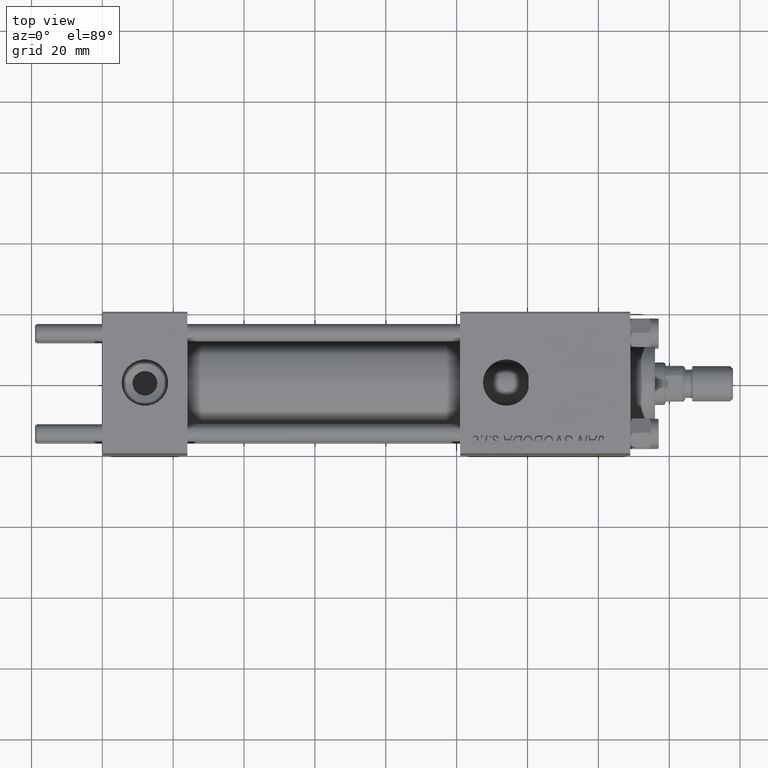
[diagram: clean part render]
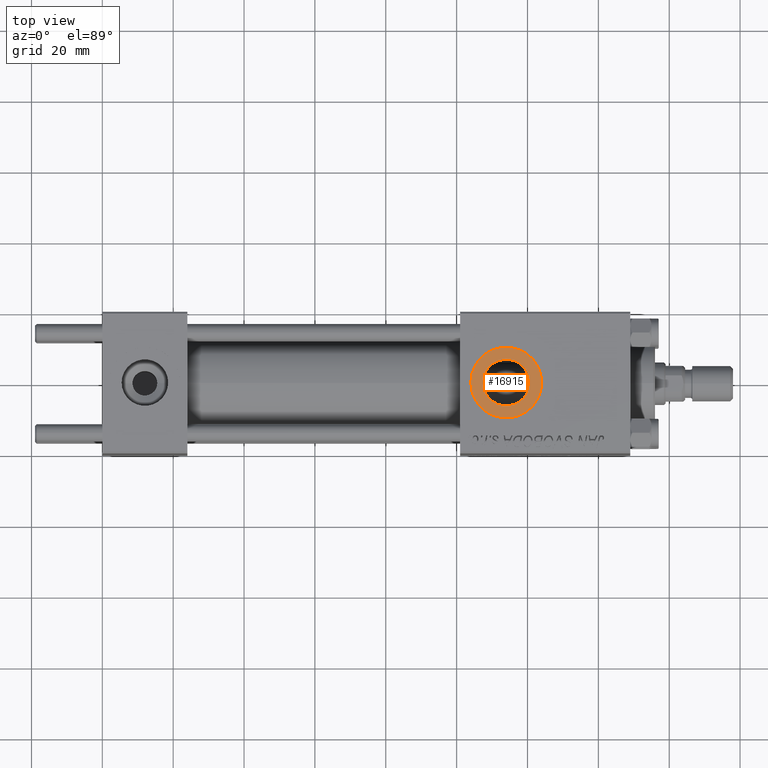
[diagram: same view with one face highlighted and labeled with its STEP entity id]
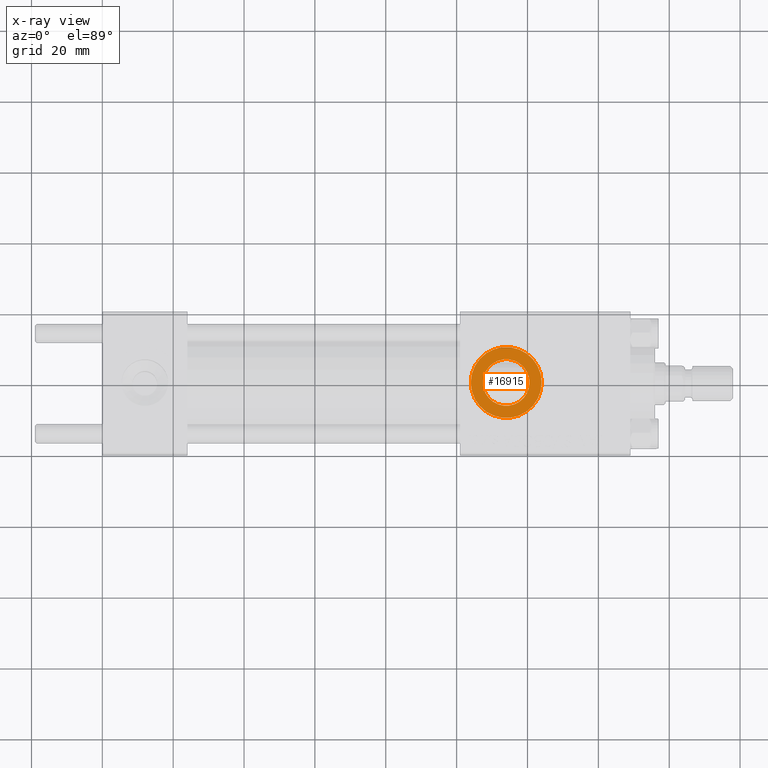
[diagram: x-ray of the same camera — body ghosted, the highlighted face saturated]
A machine part, top view. The second image highlights one B-rep face of the part: STEP entity #16915.
The next image is the same camera in x-ray: the body ghosted, the highlighted face saturated — about 0% of this face is hidden behind the body in this view.
In plain terms, the highlighted planar face has unit normal (0, 0, 1).
Its self-contained STEP definition (entity closure, byte-faithful):
#467 = AXIS2_PLACEMENT_3D ( 'NONE', #13991, #6059, #2087 ) ;
#1287 = VERTEX_POINT ( 'NONE', #43551 ) ;
#1293 = CIRCLE ( 'NONE', #467, 6.580000000000002736 ) ;
#2087 = DIRECTION ( 'NONE',  ( 1.000000000000000000, 0.000000000000000000, 0.000000000000000000 ) ) ;
#5296 = DIRECTION ( 'NONE',  ( 0.000000000000000000, 0.000000000000000000, 1.000000000000000000 ) ) ;
#5995 = CIRCLE ( 'NONE', #21223, 10.00000000000000888 ) ;
#6059 = DIRECTION ( 'NONE',  ( -0.000000000000000000, -0.000000000000000000, -1.000000000000000000 ) ) ;
#7505 = CIRCLE ( 'NONE', #37068, 10.00000000000000888 ) ;
#7583 = VERTEX_POINT ( 'NONE', #31995 ) ;
#8208 = FACE_BOUND ( 'NONE', #15338, .T. ) ;
#9564 = CARTESIAN_POINT ( 'NONE',  ( 124.0000000000000142, -1.734723475976806897E-15, 19.80000000000000071 ) ) ;
#12568 = VERTEX_POINT ( 'NONE', #9564 ) ;
#12897 = EDGE_LOOP ( 'NONE', ( #40558, #24152 ) ) ;
#13991 = CARTESIAN_POINT ( 'NONE',  ( 114.0000000000000000, -1.734723475976806897E-15, 19.80000000000000071 ) ) ;
#15080 = AXIS2_PLACEMENT_3D ( 'NONE', #19846, #15877, #52067 ) ;
#15338 = EDGE_LOOP ( 'NONE', ( #17340, #39311 ) ) ;
#15825 = CARTESIAN_POINT ( 'NONE',  ( 114.0000000000000000, -1.734723475976806897E-15, 19.80000000000000071 ) ) ;
#15877 = DIRECTION ( 'NONE',  ( 0.000000000000000000, 0.000000000000000000, 1.000000000000000000 ) ) ;
#16915 = ADVANCED_FACE ( 'NONE', ( #8208, #28037 ), #51080, .T. ) ;
#17340 = ORIENTED_EDGE ( 'NONE', *, *, #32394, .T. ) ;
#19846 = CARTESIAN_POINT ( 'NONE',  ( 114.0000000000000000, -1.734723475976806897E-15, 19.80000000000000071 ) ) ;
#21223 = AXIS2_PLACEMENT_3D ( 'NONE', #15825, #23747, #39865 ) ;
#22195 = DIRECTION ( 'NONE',  ( 1.000000000000000000, 0.000000000000000000, 0.000000000000000000 ) ) ;
#22442 = CARTESIAN_POINT ( 'NONE',  ( 107.4200000000000017, -1.734723475976806897E-15, 19.80000000000000071 ) ) ;
#23747 = DIRECTION ( 'NONE',  ( 0.000000000000000000, 0.000000000000000000, 1.000000000000000000 ) ) ;
#24152 = ORIENTED_EDGE ( 'NONE', *, *, #50473, .T. ) ;
#24546 = DIRECTION ( 'NONE',  ( 1.000000000000000000, 0.000000000000000000, 0.000000000000000000 ) ) ;
#28037 = FACE_OUTER_BOUND ( 'NONE', #12897, .T. ) ;
#31995 = CARTESIAN_POINT ( 'NONE',  ( 104.0000000000000000, -5.100766768294525560E-16, 19.80000000000000071 ) ) ;
#32394 = EDGE_CURVE ( 'NONE', #36799, #1287, #1293, .T. ) ;
#33560 = AXIS2_PLACEMENT_3D ( 'NONE', #45414, #41173, #24546 ) ;
#36799 = VERTEX_POINT ( 'NONE', #22442 ) ;
#37068 = AXIS2_PLACEMENT_3D ( 'NONE', #49441, #5296, #22195 ) ;
#38149 = EDGE_CURVE ( 'NONE', #1287, #36799, #45365, .T. ) ;
#39311 = ORIENTED_EDGE ( 'NONE', *, *, #38149, .T. ) ;
#39865 = DIRECTION ( 'NONE',  ( 1.000000000000000000, 0.000000000000000000, 0.000000000000000000 ) ) ;
#40558 = ORIENTED_EDGE ( 'NONE', *, *, #41171, .T. ) ;
#41171 = EDGE_CURVE ( 'NONE', #12568, #7583, #7505, .T. ) ;
#41173 = DIRECTION ( 'NONE',  ( -0.000000000000000000, -0.000000000000000000, -1.000000000000000000 ) ) ;
#43551 = CARTESIAN_POINT ( 'NONE',  ( 120.5800000000000125, -9.289058821378482497E-16, 19.80000000000000071 ) ) ;
#45365 = CIRCLE ( 'NONE', #33560, 6.580000000000002736 ) ;
#45414 = CARTESIAN_POINT ( 'NONE',  ( 114.0000000000000000, -1.734723475976806897E-15, 19.80000000000000071 ) ) ;
#49441 = CARTESIAN_POINT ( 'NONE',  ( 114.0000000000000000, -1.734723475976806897E-15, 19.80000000000000071 ) ) ;
#50473 = EDGE_CURVE ( 'NONE', #7583, #12568, #5995, .T. ) ;
#51080 = PLANE ( 'NONE',  #15080 ) ;
#52067 = DIRECTION ( 'NONE',  ( 1.000000000000000000, 0.000000000000000000, -0.000000000000000000 ) ) ;